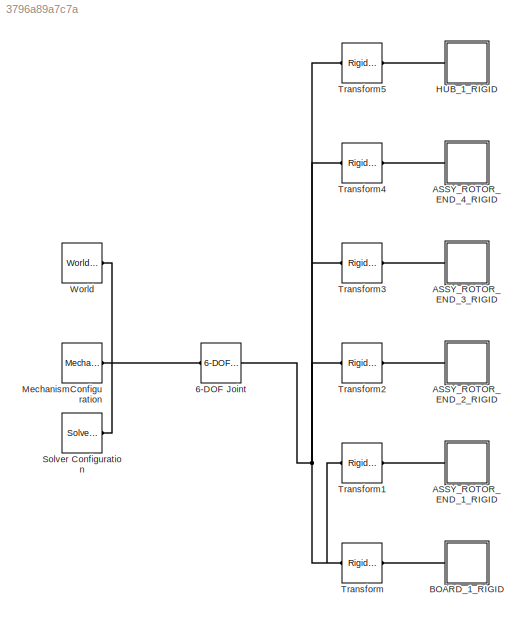
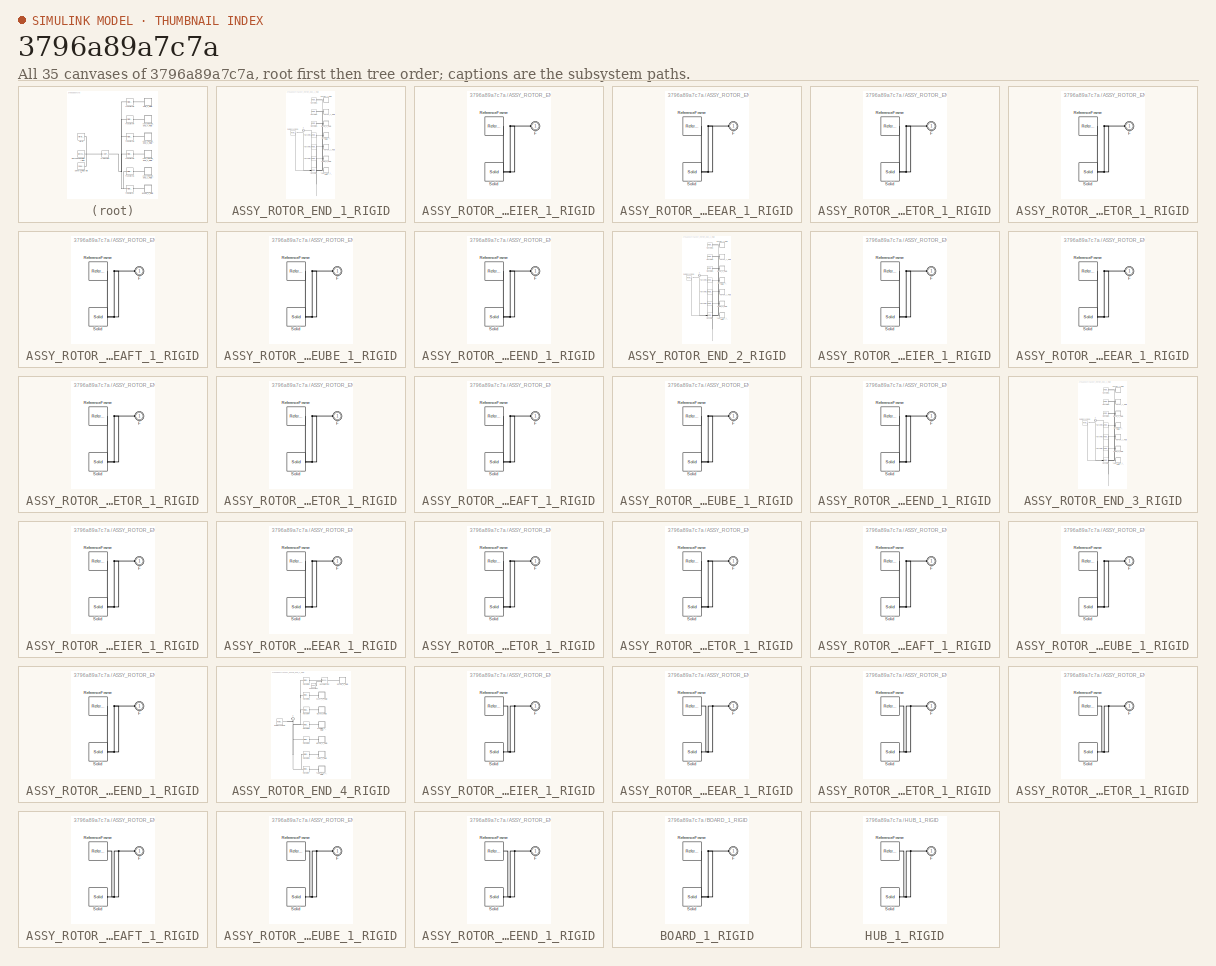
[diagram: thumbnail index - all 35 canvases of the model, root first then tree order]
MODEL slx_3796a89a7c7a
KIND model
CONFIG AbsTol = auto
CONFIG EnableMultiTasking = on
CONFIG FixedStep = auto
CONFIG MaxStep = auto
CONFIG MinStep = auto
CONFIG RelTol = 1e-3
CONFIG SampleTimeConstraint = Unconstrained
CONFIG Solver = ode15s
CONFIG SolverName = ode15s
CONFIG StartTime = 0.0
CONFIG StopTime = 10.0
BLOCK [Reference] 6-DOF Joint  REF=sm_lib/Joints/6-DOF Joint
  Ports = [0, 0, 0, 0, 0, 1, 1]
  SourceBlock = sm_lib/Joints/6-DOF Joint
  SourceProductBaseCode = MS
  SourceProductName = Simscape Multibody
  SourceType = 6-DOF Joint
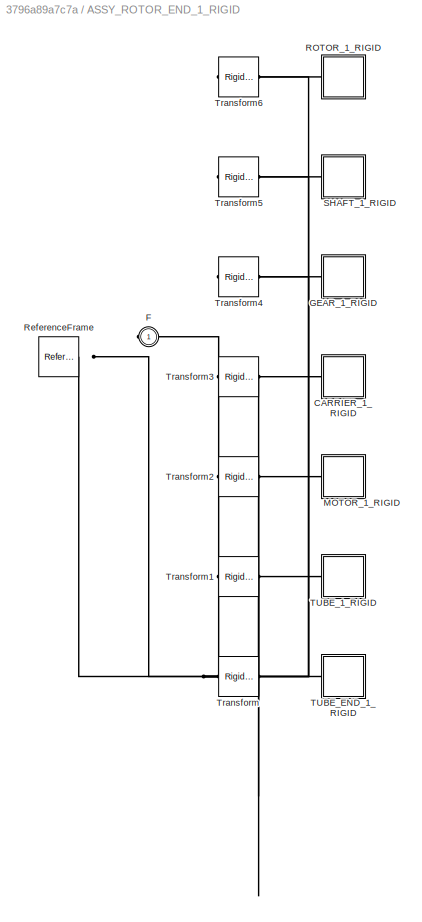
BLOCK [SubSystem] ASSY_ROTOR_END_1_RIGID
  Ports = [0, 0, 0, 0, 0, 1]
  RequestExecContextInheritance = off
BLOCK [SubSystem] ASSY_ROTOR_END_1_RIGID/CARRIER_1_RIGID
  Ports = [0, 0, 0, 0, 0, 1]
  RequestExecContextInheritance = off
BLOCK [PMIOPort] ASSY_ROTOR_END_1_RIGID/CARRIER_1_RIGID/F
  Side = Left
BLOCK [Reference] ASSY_ROTOR_END_1_RIGID/CARRIER_1_RIGID/ReferenceFrame  REF=sm_lib/Frames and
Transforms/Reference
Frame
  Ports = [0, 0, 0, 0, 0, 0, 1]
  SourceBlock = sm_lib/Frames and\nTransforms/Reference\nFrame
  SourceProductBaseCode = MS
  SourceProductName = Simscape Multibody
  SourceType = Reference\nFrame
BLOCK [Reference] ASSY_ROTOR_END_1_RIGID/CARRIER_1_RIGID/Solid  REF=sm_lib/Body Elements/Solid
  Ports = [0, 0, 0, 0, 0, 0, 1]
  SourceBlock = sm_lib/Body Elements/Solid
  SourceProductBaseCode = MS
  SourceProductName = Simscape Multibody
  SourceType = Solid
BLOCK [PMIOPort] ASSY_ROTOR_END_1_RIGID/F
  Side = Left
BLOCK [SubSystem] ASSY_ROTOR_END_1_RIGID/GEAR_1_RIGID
  Ports = [0, 0, 0, 0, 0, 1]
  RequestExecContextInheritance = off
BLOCK [PMIOPort] ASSY_ROTOR_END_1_RIGID/GEAR_1_RIGID/F
  Side = Left
BLOCK [Reference] ASSY_ROTOR_END_1_RIGID/GEAR_1_RIGID/ReferenceFrame  REF=sm_lib/Frames and
Transforms/Reference
Frame
  Ports = [0, 0, 0, 0, 0, 0, 1]
  SourceBlock = sm_lib/Frames and\nTransforms/Reference\nFrame
  SourceProductBaseCode = MS
  SourceProductName = Simscape Multibody
  SourceType = Reference\nFrame
BLOCK [Reference] ASSY_ROTOR_END_1_RIGID/GEAR_1_RIGID/Solid  REF=sm_lib/Body Elements/Solid
  Ports = [0, 0, 0, 0, 0, 0, 1]
  SourceBlock = sm_lib/Body Elements/Solid
  SourceProductBaseCode = MS
  SourceProductName = Simscape Multibody
  SourceType = Solid
BLOCK [SubSystem] ASSY_ROTOR_END_1_RIGID/MOTOR_1_RIGID
  Ports = [0, 0, 0, 0, 0, 1]
  RequestExecContextInheritance = off
BLOCK [PMIOPort] ASSY_ROTOR_END_1_RIGID/MOTOR_1_RIGID/F
  Side = Left
BLOCK [Reference] ASSY_ROTOR_END_1_RIGID/MOTOR_1_RIGID/ReferenceFrame  REF=sm_lib/Frames and
Transforms/Reference
Frame
  Ports = [0, 0, 0, 0, 0, 0, 1]
  SourceBlock = sm_lib/Frames and\nTransforms/Reference\nFrame
  SourceProductBaseCode = MS
  SourceProductName = Simscape Multibody
  SourceType = Reference\nFrame
BLOCK [Reference] ASSY_ROTOR_END_1_RIGID/MOTOR_1_RIGID/Solid  REF=sm_lib/Body Elements/Solid
  Ports = [0, 0, 0, 0, 0, 0, 1]
  SourceBlock = sm_lib/Body Elements/Solid
  SourceProductBaseCode = MS
  SourceProductName = Simscape Multibody
  SourceType = Solid
BLOCK [SubSystem] ASSY_ROTOR_END_1_RIGID/ROTOR_1_RIGID
  Ports = [0, 0, 0, 0, 0, 1]
  RequestExecContextInheritance = off
BLOCK [PMIOPort] ASSY_ROTOR_END_1_RIGID/ROTOR_1_RIGID/F
  Side = Left
BLOCK [Reference] ASSY_ROTOR_END_1_RIGID/ROTOR_1_RIGID/ReferenceFrame  REF=sm_lib/Frames and
Transforms/Reference
Frame
  Ports = [0, 0, 0, 0, 0, 0, 1]
  SourceBlock = sm_lib/Frames and\nTransforms/Reference\nFrame
  SourceProductBaseCode = MS
  SourceProductName = Simscape Multibody
  SourceType = Reference\nFrame
BLOCK [Reference] ASSY_ROTOR_END_1_RIGID/ROTOR_1_RIGID/Solid  REF=sm_lib/Body Elements/Solid
  Ports = [0, 0, 0, 0, 0, 0, 1]
  SourceBlock = sm_lib/Body Elements/Solid
  SourceProductBaseCode = MS
  SourceProductName = Simscape Multibody
  SourceType = Solid
BLOCK [Reference] ASSY_ROTOR_END_1_RIGID/ReferenceFrame  REF=sm_lib/Frames and
Transforms/Reference
Frame
  Ports = [0, 0, 0, 0, 0, 0, 1]
  SourceBlock = sm_lib/Frames and\nTransforms/Reference\nFrame
  SourceProductBaseCode = MS
  SourceProductName = Simscape Multibody
  SourceType = Reference\nFrame
BLOCK [SubSystem] ASSY_ROTOR_END_1_RIGID/SHAFT_1_RIGID
  Ports = [0, 0, 0, 0, 0, 1]
  RequestExecContextInheritance = off
BLOCK [PMIOPort] ASSY_ROTOR_END_1_RIGID/SHAFT_1_RIGID/F
  Side = Left
BLOCK [Reference] ASSY_ROTOR_END_1_RIGID/SHAFT_1_RIGID/ReferenceFrame  REF=sm_lib/Frames and
Transforms/Reference
Frame
  Ports = [0, 0, 0, 0, 0, 0, 1]
  SourceBlock = sm_lib/Frames and\nTransforms/Reference\nFrame
  SourceProductBaseCode = MS
  SourceProductName = Simscape Multibody
  SourceType = Reference\nFrame
BLOCK [Reference] ASSY_ROTOR_END_1_RIGID/SHAFT_1_RIGID/Solid  REF=sm_lib/Body Elements/Solid
  Ports = [0, 0, 0, 0, 0, 0, 1]
  SourceBlock = sm_lib/Body Elements/Solid
  SourceProductBaseCode = MS
  SourceProductName = Simscape Multibody
  SourceType = Solid
BLOCK [SubSystem] ASSY_ROTOR_END_1_RIGID/TUBE_1_RIGID
  Ports = [0, 0, 0, 0, 0, 1]
  RequestExecContextInheritance = off
BLOCK [PMIOPort] ASSY_ROTOR_END_1_RIGID/TUBE_1_RIGID/F
  Side = Left
BLOCK [Reference] ASSY_ROTOR_END_1_RIGID/TUBE_1_RIGID/ReferenceFrame  REF=sm_lib/Frames and
Transforms/Reference
Frame
  Ports = [0, 0, 0, 0, 0, 0, 1]
  SourceBlock = sm_lib/Frames and\nTransforms/Reference\nFrame
  SourceProductBaseCode = MS
  SourceProductName = Simscape Multibody
  SourceType = Reference\nFrame
BLOCK [Reference] ASSY_ROTOR_END_1_RIGID/TUBE_1_RIGID/Solid  REF=sm_lib/Body Elements/Solid
  Ports = [0, 0, 0, 0, 0, 0, 1]
  SourceBlock = sm_lib/Body Elements/Solid
  SourceProductBaseCode = MS
  SourceProductName = Simscape Multibody
  SourceType = Solid
BLOCK [SubSystem] ASSY_ROTOR_END_1_RIGID/TUBE_END_1_RIGID
  Ports = [0, 0, 0, 0, 0, 1]
  RequestExecContextInheritance = off
BLOCK [PMIOPort] ASSY_ROTOR_END_1_RIGID/TUBE_END_1_RIGID/F
  Side = Left
BLOCK [Reference] ASSY_ROTOR_END_1_RIGID/TUBE_END_1_RIGID/ReferenceFrame  REF=sm_lib/Frames and
Transforms/Reference
Frame
  Ports = [0, 0, 0, 0, 0, 0, 1]
  SourceBlock = sm_lib/Frames and\nTransforms/Reference\nFrame
  SourceProductBaseCode = MS
  SourceProductName = Simscape Multibody
  SourceType = Reference\nFrame
BLOCK [Reference] ASSY_ROTOR_END_1_RIGID/TUBE_END_1_RIGID/Solid  REF=sm_lib/Body Elements/Solid
  Ports = [0, 0, 0, 0, 0, 0, 1]
  SourceBlock = sm_lib/Body Elements/Solid
  SourceProductBaseCode = MS
  SourceProductName = Simscape Multibody
  SourceType = Solid
BLOCK [Reference] ASSY_ROTOR_END_1_RIGID/Transform  REF=sm_lib/Frames and
Transforms/Rigid
Transform
  Ports = [0, 0, 0, 0, 0, 1, 1]
  SourceBlock = sm_lib/Frames and\nTransforms/Rigid\nTransform
  SourceProductBaseCode = MS
  SourceProductName = Simscape Multibody
  SourceType = Rigid\nTransform
BLOCK [Reference] ASSY_ROTOR_END_1_RIGID/Transform1  REF=sm_lib/Frames and
Transforms/Rigid
Transform
  Ports = [0, 0, 0, 0, 0, 1, 1]
  SourceBlock = sm_lib/Frames and\nTransforms/Rigid\nTransform
  SourceProductBaseCode = MS
  SourceProductName = Simscape Multibody
  SourceType = Rigid\nTransform
BLOCK [Reference] ASSY_ROTOR_END_1_RIGID/Transform2  REF=sm_lib/Frames and
Transforms/Rigid
Transform
  Ports = [0, 0, 0, 0, 0, 1, 1]
  SourceBlock = sm_lib/Frames and\nTransforms/Rigid\nTransform
  SourceProductBaseCode = MS
  SourceProductName = Simscape Multibody
  SourceType = Rigid\nTransform
BLOCK [Reference] ASSY_ROTOR_END_1_RIGID/Transform3  REF=sm_lib/Frames and
Transforms/Rigid
Transform
  Ports = [0, 0, 0, 0, 0, 1, 1]
  SourceBlock = sm_lib/Frames and\nTransforms/Rigid\nTransform
  SourceProductBaseCode = MS
  SourceProductName = Simscape Multibody
  SourceType = Rigid\nTransform
BLOCK [Reference] ASSY_ROTOR_END_1_RIGID/Transform4  REF=sm_lib/Frames and
Transforms/Rigid
Transform
  Ports = [0, 0, 0, 0, 0, 1, 1]
  SourceBlock = sm_lib/Frames and\nTransforms/Rigid\nTransform
  SourceProductBaseCode = MS
  SourceProductName = Simscape Multibody
  SourceType = Rigid\nTransform
BLOCK [Reference] ASSY_ROTOR_END_1_RIGID/Transform5  REF=sm_lib/Frames and
Transforms/Rigid
Transform
  Ports = [0, 0, 0, 0, 0, 1, 1]
  SourceBlock = sm_lib/Frames and\nTransforms/Rigid\nTransform
  SourceProductBaseCode = MS
  SourceProductName = Simscape Multibody
  SourceType = Rigid\nTransform
BLOCK [Reference] ASSY_ROTOR_END_1_RIGID/Transform6  REF=sm_lib/Frames and
Transforms/Rigid
Transform
  Ports = [0, 0, 0, 0, 0, 1, 1]
  SourceBlock = sm_lib/Frames and\nTransforms/Rigid\nTransform
  SourceProductBaseCode = MS
  SourceProductName = Simscape Multibody
  SourceType = Rigid\nTransform
BLOCK [SubSystem] ASSY_ROTOR_END_2_RIGID
  Ports = [0, 0, 0, 0, 0, 1]
  RequestExecContextInheritance = off
BLOCK [SubSystem] ASSY_ROTOR_END_2_RIGID/CARRIER_1_RIGID
  Ports = [0, 0, 0, 0, 0, 1]
  RequestExecContextInheritance = off
BLOCK [PMIOPort] ASSY_ROTOR_END_2_RIGID/CARRIER_1_RIGID/F
  Side = Left
BLOCK [Reference] ASSY_ROTOR_END_2_RIGID/CARRIER_1_RIGID/ReferenceFrame  REF=sm_lib/Frames and
Transforms/Reference
Frame
  Ports = [0, 0, 0, 0, 0, 0, 1]
  SourceBlock = sm_lib/Frames and\nTransforms/Reference\nFrame
  SourceProductBaseCode = MS
  SourceProductName = Simscape Multibody
  SourceType = Reference\nFrame
BLOCK [Reference] ASSY_ROTOR_END_2_RIGID/CARRIER_1_RIGID/Solid  REF=sm_lib/Body Elements/Solid
  Ports = [0, 0, 0, 0, 0, 0, 1]
  SourceBlock = sm_lib/Body Elements/Solid
  SourceProductBaseCode = MS
  SourceProductName = Simscape Multibody
  SourceType = Solid
BLOCK [PMIOPort] ASSY_ROTOR_END_2_RIGID/F
  Side = Left
BLOCK [SubSystem] ASSY_ROTOR_END_2_RIGID/GEAR_1_RIGID
  Ports = [0, 0, 0, 0, 0, 1]
  RequestExecContextInheritance = off
BLOCK [PMIOPort] ASSY_ROTOR_END_2_RIGID/GEAR_1_RIGID/F
  Side = Left
BLOCK [Reference] ASSY_ROTOR_END_2_RIGID/GEAR_1_RIGID/ReferenceFrame  REF=sm_lib/Frames and
Transforms/Reference
Frame
  Ports = [0, 0, 0, 0, 0, 0, 1]
  SourceBlock = sm_lib/Frames and\nTransforms/Reference\nFrame
  SourceProductBaseCode = MS
  SourceProductName = Simscape Multibody
  SourceType = Reference\nFrame
BLOCK [Reference] ASSY_ROTOR_END_2_RIGID/GEAR_1_RIGID/Solid  REF=sm_lib/Body Elements/Solid
  Ports = [0, 0, 0, 0, 0, 0, 1]
  SourceBlock = sm_lib/Body Elements/Solid
  SourceProductBaseCode = MS
  SourceProductName = Simscape Multibody
  SourceType = Solid
BLOCK [SubSystem] ASSY_ROTOR_END_2_RIGID/MOTOR_1_RIGID
  Ports = [0, 0, 0, 0, 0, 1]
  RequestExecContextInheritance = off
BLOCK [PMIOPort] ASSY_ROTOR_END_2_RIGID/MOTOR_1_RIGID/F
  Side = Left
BLOCK [Reference] ASSY_ROTOR_END_2_RIGID/MOTOR_1_RIGID/ReferenceFrame  REF=sm_lib/Frames and
Transforms/Reference
Frame
  Ports = [0, 0, 0, 0, 0, 0, 1]
  SourceBlock = sm_lib/Frames and\nTransforms/Reference\nFrame
  SourceProductBaseCode = MS
  SourceProductName = Simscape Multibody
  SourceType = Reference\nFrame
BLOCK [Reference] ASSY_ROTOR_END_2_RIGID/MOTOR_1_RIGID/Solid  REF=sm_lib/Body Elements/Solid
  Ports = [0, 0, 0, 0, 0, 0, 1]
  SourceBlock = sm_lib/Body Elements/Solid
  SourceProductBaseCode = MS
  SourceProductName = Simscape Multibody
  SourceType = Solid
BLOCK [SubSystem] ASSY_ROTOR_END_2_RIGID/ROTOR_1_RIGID
  Ports = [0, 0, 0, 0, 0, 1]
  RequestExecContextInheritance = off
BLOCK [PMIOPort] ASSY_ROTOR_END_2_RIGID/ROTOR_1_RIGID/F
  Side = Left
BLOCK [Reference] ASSY_ROTOR_END_2_RIGID/ROTOR_1_RIGID/ReferenceFrame  REF=sm_lib/Frames and
Transforms/Reference
Frame
  Ports = [0, 0, 0, 0, 0, 0, 1]
  SourceBlock = sm_lib/Frames and\nTransforms/Reference\nFrame
  SourceProductBaseCode = MS
  SourceProductName = Simscape Multibody
  SourceType = Reference\nFrame
BLOCK [Reference] ASSY_ROTOR_END_2_RIGID/ROTOR_1_RIGID/Solid  REF=sm_lib/Body Elements/Solid
  Ports = [0, 0, 0, 0, 0, 0, 1]
  SourceBlock = sm_lib/Body Elements/Solid
  SourceProductBaseCode = MS
  SourceProductName = Simscape Multibody
  SourceType = Solid
BLOCK [Reference] ASSY_ROTOR_END_2_RIGID/ReferenceFrame  REF=sm_lib/Frames and
Transforms/Reference
Frame
  Ports = [0, 0, 0, 0, 0, 0, 1]
  SourceBlock = sm_lib/Frames and\nTransforms/Reference\nFrame
  SourceProductBaseCode = MS
  SourceProductName = Simscape Multibody
  SourceType = Reference\nFrame
BLOCK [SubSystem] ASSY_ROTOR_END_2_RIGID/SHAFT_1_RIGID
  Ports = [0, 0, 0, 0, 0, 1]
  RequestExecContextInheritance = off
BLOCK [PMIOPort] ASSY_ROTOR_END_2_RIGID/SHAFT_1_RIGID/F
  Side = Left
BLOCK [Reference] ASSY_ROTOR_END_2_RIGID/SHAFT_1_RIGID/ReferenceFrame  REF=sm_lib/Frames and
Transforms/Reference
Frame
  Ports = [0, 0, 0, 0, 0, 0, 1]
  SourceBlock = sm_lib/Frames and\nTransforms/Reference\nFrame
  SourceProductBaseCode = MS
  SourceProductName = Simscape Multibody
  SourceType = Reference\nFrame
BLOCK [Reference] ASSY_ROTOR_END_2_RIGID/SHAFT_1_RIGID/Solid  REF=sm_lib/Body Elements/Solid
  Ports = [0, 0, 0, 0, 0, 0, 1]
  SourceBlock = sm_lib/Body Elements/Solid
  SourceProductBaseCode = MS
  SourceProductName = Simscape Multibody
  SourceType = Solid
BLOCK [SubSystem] ASSY_ROTOR_END_2_RIGID/TUBE_1_RIGID
  Ports = [0, 0, 0, 0, 0, 1]
  RequestExecContextInheritance = off
BLOCK [PMIOPort] ASSY_ROTOR_END_2_RIGID/TUBE_1_RIGID/F
  Side = Left
BLOCK [Reference] ASSY_ROTOR_END_2_RIGID/TUBE_1_RIGID/ReferenceFrame  REF=sm_lib/Frames and
Transforms/Reference
Frame
  Ports = [0, 0, 0, 0, 0, 0, 1]
  SourceBlock = sm_lib/Frames and\nTransforms/Reference\nFrame
  SourceProductBaseCode = MS
  SourceProductName = Simscape Multibody
  SourceType = Reference\nFrame
BLOCK [Reference] ASSY_ROTOR_END_2_RIGID/TUBE_1_RIGID/Solid  REF=sm_lib/Body Elements/Solid
  Ports = [0, 0, 0, 0, 0, 0, 1]
  SourceBlock = sm_lib/Body Elements/Solid
  SourceProductBaseCode = MS
  SourceProductName = Simscape Multibody
  SourceType = Solid
BLOCK [SubSystem] ASSY_ROTOR_END_2_RIGID/TUBE_END_1_RIGID
  Ports = [0, 0, 0, 0, 0, 1]
  RequestExecContextInheritance = off
BLOCK [PMIOPort] ASSY_ROTOR_END_2_RIGID/TUBE_END_1_RIGID/F
  Side = Left
BLOCK [Reference] ASSY_ROTOR_END_2_RIGID/TUBE_END_1_RIGID/ReferenceFrame  REF=sm_lib/Frames and
Transforms/Reference
Frame
  Ports = [0, 0, 0, 0, 0, 0, 1]
  SourceBlock = sm_lib/Frames and\nTransforms/Reference\nFrame
  SourceProductBaseCode = MS
  SourceProductName = Simscape Multibody
  SourceType = Reference\nFrame
BLOCK [Reference] ASSY_ROTOR_END_2_RIGID/TUBE_END_1_RIGID/Solid  REF=sm_lib/Body Elements/Solid
  Ports = [0, 0, 0, 0, 0, 0, 1]
  SourceBlock = sm_lib/Body Elements/Solid
  SourceProductBaseCode = MS
  SourceProductName = Simscape Multibody
  SourceType = Solid
BLOCK [Reference] ASSY_ROTOR_END_2_RIGID/Transform  REF=sm_lib/Frames and
Transforms/Rigid
Transform
  Ports = [0, 0, 0, 0, 0, 1, 1]
  SourceBlock = sm_lib/Frames and\nTransforms/Rigid\nTransform
  SourceProductBaseCode = MS
  SourceProductName = Simscape Multibody
  SourceType = Rigid\nTransform
BLOCK [Reference] ASSY_ROTOR_END_2_RIGID/Transform1  REF=sm_lib/Frames and
Transforms/Rigid
Transform
  Ports = [0, 0, 0, 0, 0, 1, 1]
  SourceBlock = sm_lib/Frames and\nTransforms/Rigid\nTransform
  SourceProductBaseCode = MS
  SourceProductName = Simscape Multibody
  SourceType = Rigid\nTransform
BLOCK [Reference] ASSY_ROTOR_END_2_RIGID/Transform2  REF=sm_lib/Frames and
Transforms/Rigid
Transform
  Ports = [0, 0, 0, 0, 0, 1, 1]
  SourceBlock = sm_lib/Frames and\nTransforms/Rigid\nTransform
  SourceProductBaseCode = MS
  SourceProductName = Simscape Multibody
  SourceType = Rigid\nTransform
BLOCK [Reference] ASSY_ROTOR_END_2_RIGID/Transform3  REF=sm_lib/Frames and
Transforms/Rigid
Transform
  Ports = [0, 0, 0, 0, 0, 1, 1]
  SourceBlock = sm_lib/Frames and\nTransforms/Rigid\nTransform
  SourceProductBaseCode = MS
  SourceProductName = Simscape Multibody
  SourceType = Rigid\nTransform
BLOCK [Reference] ASSY_ROTOR_END_2_RIGID/Transform4  REF=sm_lib/Frames and
Transforms/Rigid
Transform
  Ports = [0, 0, 0, 0, 0, 1, 1]
  SourceBlock = sm_lib/Frames and\nTransforms/Rigid\nTransform
  SourceProductBaseCode = MS
  SourceProductName = Simscape Multibody
  SourceType = Rigid\nTransform
BLOCK [Reference] ASSY_ROTOR_END_2_RIGID/Transform5  REF=sm_lib/Frames and
Transforms/Rigid
Transform
  Ports = [0, 0, 0, 0, 0, 1, 1]
  SourceBlock = sm_lib/Frames and\nTransforms/Rigid\nTransform
  SourceProductBaseCode = MS
  SourceProductName = Simscape Multibody
  SourceType = Rigid\nTransform
BLOCK [Reference] ASSY_ROTOR_END_2_RIGID/Transform6  REF=sm_lib/Frames and
Transforms/Rigid
Transform
  Ports = [0, 0, 0, 0, 0, 1, 1]
  SourceBlock = sm_lib/Frames and\nTransforms/Rigid\nTransform
  SourceProductBaseCode = MS
  SourceProductName = Simscape Multibody
  SourceType = Rigid\nTransform
BLOCK [SubSystem] ASSY_ROTOR_END_3_RIGID
  Ports = [0, 0, 0, 0, 0, 1]
  RequestExecContextInheritance = off
BLOCK [SubSystem] ASSY_ROTOR_END_3_RIGID/CARRIER_1_RIGID
  Ports = [0, 0, 0, 0, 0, 1]
  RequestExecContextInheritance = off
BLOCK [PMIOPort] ASSY_ROTOR_END_3_RIGID/CARRIER_1_RIGID/F
  Side = Left
BLOCK [Reference] ASSY_ROTOR_END_3_RIGID/CARRIER_1_RIGID/ReferenceFrame  REF=sm_lib/Frames and
Transforms/Reference
Frame
  Ports = [0, 0, 0, 0, 0, 0, 1]
  SourceBlock = sm_lib/Frames and\nTransforms/Reference\nFrame
  SourceProductBaseCode = MS
  SourceProductName = Simscape Multibody
  SourceType = Reference\nFrame
BLOCK [Reference] ASSY_ROTOR_END_3_RIGID/CARRIER_1_RIGID/Solid  REF=sm_lib/Body Elements/Solid
  Ports = [0, 0, 0, 0, 0, 0, 1]
  SourceBlock = sm_lib/Body Elements/Solid
  SourceProductBaseCode = MS
  SourceProductName = Simscape Multibody
  SourceType = Solid
BLOCK [PMIOPort] ASSY_ROTOR_END_3_RIGID/F
  Side = Left
BLOCK [SubSystem] ASSY_ROTOR_END_3_RIGID/GEAR_1_RIGID
  Ports = [0, 0, 0, 0, 0, 1]
  RequestExecContextInheritance = off
BLOCK [PMIOPort] ASSY_ROTOR_END_3_RIGID/GEAR_1_RIGID/F
  Side = Left
BLOCK [Reference] ASSY_ROTOR_END_3_RIGID/GEAR_1_RIGID/ReferenceFrame  REF=sm_lib/Frames and
Transforms/Reference
Frame
  Ports = [0, 0, 0, 0, 0, 0, 1]
  SourceBlock = sm_lib/Frames and\nTransforms/Reference\nFrame
  SourceProductBaseCode = MS
  SourceProductName = Simscape Multibody
  SourceType = Reference\nFrame
BLOCK [Reference] ASSY_ROTOR_END_3_RIGID/GEAR_1_RIGID/Solid  REF=sm_lib/Body Elements/Solid
  Ports = [0, 0, 0, 0, 0, 0, 1]
  SourceBlock = sm_lib/Body Elements/Solid
  SourceProductBaseCode = MS
  SourceProductName = Simscape Multibody
  SourceType = Solid
BLOCK [SubSystem] ASSY_ROTOR_END_3_RIGID/MOTOR_1_RIGID
  Ports = [0, 0, 0, 0, 0, 1]
  RequestExecContextInheritance = off
BLOCK [PMIOPort] ASSY_ROTOR_END_3_RIGID/MOTOR_1_RIGID/F
  Side = Left
BLOCK [Reference] ASSY_ROTOR_END_3_RIGID/MOTOR_1_RIGID/ReferenceFrame  REF=sm_lib/Frames and
Transforms/Reference
Frame
  Ports = [0, 0, 0, 0, 0, 0, 1]
  SourceBlock = sm_lib/Frames and\nTransforms/Reference\nFrame
  SourceProductBaseCode = MS
  SourceProductName = Simscape Multibody
  SourceType = Reference\nFrame
BLOCK [Reference] ASSY_ROTOR_END_3_RIGID/MOTOR_1_RIGID/Solid  REF=sm_lib/Body Elements/Solid
  Ports = [0, 0, 0, 0, 0, 0, 1]
  SourceBlock = sm_lib/Body Elements/Solid
  SourceProductBaseCode = MS
  SourceProductName = Simscape Multibody
  SourceType = Solid
BLOCK [SubSystem] ASSY_ROTOR_END_3_RIGID/ROTOR_1_RIGID
  Ports = [0, 0, 0, 0, 0, 1]
  RequestExecContextInheritance = off
BLOCK [PMIOPort] ASSY_ROTOR_END_3_RIGID/ROTOR_1_RIGID/F
  Side = Left
BLOCK [Reference] ASSY_ROTOR_END_3_RIGID/ROTOR_1_RIGID/ReferenceFrame  REF=sm_lib/Frames and
Transforms/Reference
Frame
  Ports = [0, 0, 0, 0, 0, 0, 1]
  SourceBlock = sm_lib/Frames and\nTransforms/Reference\nFrame
  SourceProductBaseCode = MS
  SourceProductName = Simscape Multibody
  SourceType = Reference\nFrame
BLOCK [Reference] ASSY_ROTOR_END_3_RIGID/ROTOR_1_RIGID/Solid  REF=sm_lib/Body Elements/Solid
  Ports = [0, 0, 0, 0, 0, 0, 1]
  SourceBlock = sm_lib/Body Elements/Solid
  SourceProductBaseCode = MS
  SourceProductName = Simscape Multibody
  SourceType = Solid
BLOCK [Reference] ASSY_ROTOR_END_3_RIGID/ReferenceFrame  REF=sm_lib/Frames and
Transforms/Reference
Frame
  Ports = [0, 0, 0, 0, 0, 0, 1]
  SourceBlock = sm_lib/Frames and\nTransforms/Reference\nFrame
  SourceProductBaseCode = MS
  SourceProductName = Simscape Multibody
  SourceType = Reference\nFrame
BLOCK [SubSystem] ASSY_ROTOR_END_3_RIGID/SHAFT_1_RIGID
  Ports = [0, 0, 0, 0, 0, 1]
  RequestExecContextInheritance = off
BLOCK [PMIOPort] ASSY_ROTOR_END_3_RIGID/SHAFT_1_RIGID/F
  Side = Left
BLOCK [Reference] ASSY_ROTOR_END_3_RIGID/SHAFT_1_RIGID/ReferenceFrame  REF=sm_lib/Frames and
Transforms/Reference
Frame
  Ports = [0, 0, 0, 0, 0, 0, 1]
  SourceBlock = sm_lib/Frames and\nTransforms/Reference\nFrame
  SourceProductBaseCode = MS
  SourceProductName = Simscape Multibody
  SourceType = Reference\nFrame
BLOCK [Reference] ASSY_ROTOR_END_3_RIGID/SHAFT_1_RIGID/Solid  REF=sm_lib/Body Elements/Solid
  Ports = [0, 0, 0, 0, 0, 0, 1]
  SourceBlock = sm_lib/Body Elements/Solid
  SourceProductBaseCode = MS
  SourceProductName = Simscape Multibody
  SourceType = Solid
BLOCK [SubSystem] ASSY_ROTOR_END_3_RIGID/TUBE_1_RIGID
  Ports = [0, 0, 0, 0, 0, 1]
  RequestExecContextInheritance = off
BLOCK [PMIOPort] ASSY_ROTOR_END_3_RIGID/TUBE_1_RIGID/F
  Side = Left
BLOCK [Reference] ASSY_ROTOR_END_3_RIGID/TUBE_1_RIGID/ReferenceFrame  REF=sm_lib/Frames and
Transforms/Reference
Frame
  Ports = [0, 0, 0, 0, 0, 0, 1]
  SourceBlock = sm_lib/Frames and\nTransforms/Reference\nFrame
  SourceProductBaseCode = MS
  SourceProductName = Simscape Multibody
  SourceType = Reference\nFrame
BLOCK [Reference] ASSY_ROTOR_END_3_RIGID/TUBE_1_RIGID/Solid  REF=sm_lib/Body Elements/Solid
  Ports = [0, 0, 0, 0, 0, 0, 1]
  SourceBlock = sm_lib/Body Elements/Solid
  SourceProductBaseCode = MS
  SourceProductName = Simscape Multibody
  SourceType = Solid
BLOCK [SubSystem] ASSY_ROTOR_END_3_RIGID/TUBE_END_1_RIGID
  Ports = [0, 0, 0, 0, 0, 1]
  RequestExecContextInheritance = off
BLOCK [PMIOPort] ASSY_ROTOR_END_3_RIGID/TUBE_END_1_RIGID/F
  Side = Left
BLOCK [Reference] ASSY_ROTOR_END_3_RIGID/TUBE_END_1_RIGID/ReferenceFrame  REF=sm_lib/Frames and
Transforms/Reference
Frame
  Ports = [0, 0, 0, 0, 0, 0, 1]
  SourceBlock = sm_lib/Frames and\nTransforms/Reference\nFrame
  SourceProductBaseCode = MS
  SourceProductName = Simscape Multibody
  SourceType = Reference\nFrame
BLOCK [Reference] ASSY_ROTOR_END_3_RIGID/TUBE_END_1_RIGID/Solid  REF=sm_lib/Body Elements/Solid
  Ports = [0, 0, 0, 0, 0, 0, 1]
  SourceBlock = sm_lib/Body Elements/Solid
  SourceProductBaseCode = MS
  SourceProductName = Simscape Multibody
  SourceType = Solid
BLOCK [Reference] ASSY_ROTOR_END_3_RIGID/Transform  REF=sm_lib/Frames and
Transforms/Rigid
Transform
  Ports = [0, 0, 0, 0, 0, 1, 1]
  SourceBlock = sm_lib/Frames and\nTransforms/Rigid\nTransform
  SourceProductBaseCode = MS
  SourceProductName = Simscape Multibody
  SourceType = Rigid\nTransform
BLOCK [Reference] ASSY_ROTOR_END_3_RIGID/Transform1  REF=sm_lib/Frames and
Transforms/Rigid
Transform
  Ports = [0, 0, 0, 0, 0, 1, 1]
  SourceBlock = sm_lib/Frames and\nTransforms/Rigid\nTransform
  SourceProductBaseCode = MS
  SourceProductName = Simscape Multibody
  SourceType = Rigid\nTransform
BLOCK [Reference] ASSY_ROTOR_END_3_RIGID/Transform2  REF=sm_lib/Frames and
Transforms/Rigid
Transform
  Ports = [0, 0, 0, 0, 0, 1, 1]
  SourceBlock = sm_lib/Frames and\nTransforms/Rigid\nTransform
  SourceProductBaseCode = MS
  SourceProductName = Simscape Multibody
  SourceType = Rigid\nTransform
BLOCK [Reference] ASSY_ROTOR_END_3_RIGID/Transform3  REF=sm_lib/Frames and
Transforms/Rigid
Transform
  Ports = [0, 0, 0, 0, 0, 1, 1]
  SourceBlock = sm_lib/Frames and\nTransforms/Rigid\nTransform
  SourceProductBaseCode = MS
  SourceProductName = Simscape Multibody
  SourceType = Rigid\nTransform
BLOCK [Reference] ASSY_ROTOR_END_3_RIGID/Transform4  REF=sm_lib/Frames and
Transforms/Rigid
Transform
  Ports = [0, 0, 0, 0, 0, 1, 1]
  SourceBlock = sm_lib/Frames and\nTransforms/Rigid\nTransform
  SourceProductBaseCode = MS
  SourceProductName = Simscape Multibody
  SourceType = Rigid\nTransform
BLOCK [Reference] ASSY_ROTOR_END_3_RIGID/Transform5  REF=sm_lib/Frames and
Transforms/Rigid
Transform
  Ports = [0, 0, 0, 0, 0, 1, 1]
  SourceBlock = sm_lib/Frames and\nTransforms/Rigid\nTransform
  SourceProductBaseCode = MS
  SourceProductName = Simscape Multibody
  SourceType = Rigid\nTransform
BLOCK [Reference] ASSY_ROTOR_END_3_RIGID/Transform6  REF=sm_lib/Frames and
Transforms/Rigid
Transform
  Ports = [0, 0, 0, 0, 0, 1, 1]
  SourceBlock = sm_lib/Frames and\nTransforms/Rigid\nTransform
  SourceProductBaseCode = MS
  SourceProductName = Simscape Multibody
  SourceType = Rigid\nTransform
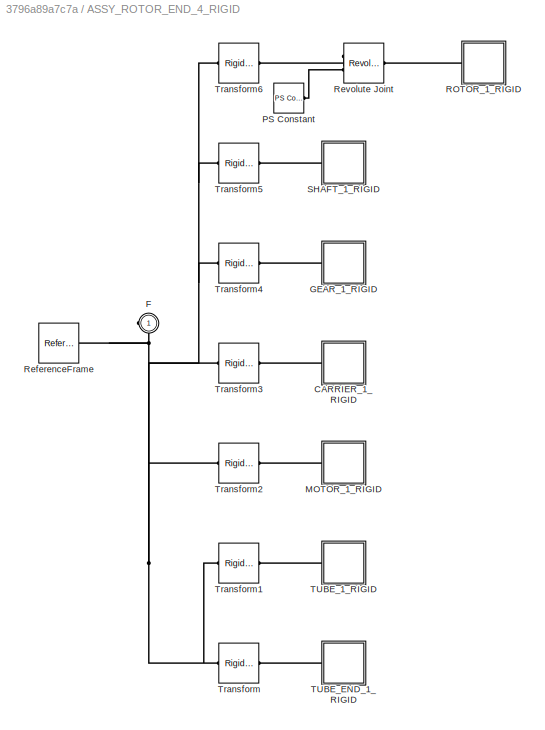
BLOCK [SubSystem] ASSY_ROTOR_END_4_RIGID
  Ports = [0, 0, 0, 0, 0, 1]
  RequestExecContextInheritance = off
BLOCK [SubSystem] ASSY_ROTOR_END_4_RIGID/CARRIER_1_RIGID
  Ports = [0, 0, 0, 0, 0, 1]
  RequestExecContextInheritance = off
BLOCK [PMIOPort] ASSY_ROTOR_END_4_RIGID/CARRIER_1_RIGID/F
  Side = Left
BLOCK [Reference] ASSY_ROTOR_END_4_RIGID/CARRIER_1_RIGID/ReferenceFrame  REF=sm_lib/Frames and
Transforms/Reference
Frame
  Ports = [0, 0, 0, 0, 0, 0, 1]
  SourceBlock = sm_lib/Frames and\nTransforms/Reference\nFrame
  SourceProductBaseCode = MS
  SourceProductName = Simscape Multibody
  SourceType = Reference\nFrame
BLOCK [Reference] ASSY_ROTOR_END_4_RIGID/CARRIER_1_RIGID/Solid  REF=sm_lib/Body Elements/Solid
  Ports = [0, 0, 0, 0, 0, 0, 1]
  SourceBlock = sm_lib/Body Elements/Solid
  SourceProductBaseCode = MS
  SourceProductName = Simscape Multibody
  SourceType = Solid
BLOCK [PMIOPort] ASSY_ROTOR_END_4_RIGID/F
  Side = Left
BLOCK [SubSystem] ASSY_ROTOR_END_4_RIGID/GEAR_1_RIGID
  Ports = [0, 0, 0, 0, 0, 1]
  RequestExecContextInheritance = off
BLOCK [PMIOPort] ASSY_ROTOR_END_4_RIGID/GEAR_1_RIGID/F
  Side = Left
BLOCK [Reference] ASSY_ROTOR_END_4_RIGID/GEAR_1_RIGID/ReferenceFrame  REF=sm_lib/Frames and
Transforms/Reference
Frame
  Ports = [0, 0, 0, 0, 0, 0, 1]
  SourceBlock = sm_lib/Frames and\nTransforms/Reference\nFrame
  SourceProductBaseCode = MS
  SourceProductName = Simscape Multibody
  SourceType = Reference\nFrame
BLOCK [Reference] ASSY_ROTOR_END_4_RIGID/GEAR_1_RIGID/Solid  REF=sm_lib/Body Elements/Solid
  Ports = [0, 0, 0, 0, 0, 0, 1]
  SourceBlock = sm_lib/Body Elements/Solid
  SourceProductBaseCode = MS
  SourceProductName = Simscape Multibody
  SourceType = Solid
BLOCK [SubSystem] ASSY_ROTOR_END_4_RIGID/MOTOR_1_RIGID
  Ports = [0, 0, 0, 0, 0, 1]
  RequestExecContextInheritance = off
BLOCK [PMIOPort] ASSY_ROTOR_END_4_RIGID/MOTOR_1_RIGID/F
  Side = Left
BLOCK [Reference] ASSY_ROTOR_END_4_RIGID/MOTOR_1_RIGID/ReferenceFrame  REF=sm_lib/Frames and
Transforms/Reference
Frame
  Ports = [0, 0, 0, 0, 0, 0, 1]
  SourceBlock = sm_lib/Frames and\nTransforms/Reference\nFrame
  SourceProductBaseCode = MS
  SourceProductName = Simscape Multibody
  SourceType = Reference\nFrame
BLOCK [Reference] ASSY_ROTOR_END_4_RIGID/MOTOR_1_RIGID/Solid  REF=sm_lib/Body Elements/Solid
  Ports = [0, 0, 0, 0, 0, 0, 1]
  SourceBlock = sm_lib/Body Elements/Solid
  SourceProductBaseCode = MS
  SourceProductName = Simscape Multibody
  SourceType = Solid
BLOCK [Reference] ASSY_ROTOR_END_4_RIGID/PS Constant  REF=fl_lib/Physical Signals/Sources/PS Constant
  Ports = [0, 0, 0, 0, 0, 0, 1]
  SourceBlock = fl_lib/Physical Signals/Sources/PS Constant
  SourceProductBaseCode = SS
  SourceProductName = Simscape
  SourceType = PS Constant
BLOCK [SubSystem] ASSY_ROTOR_END_4_RIGID/ROTOR_1_RIGID
  Ports = [0, 0, 0, 0, 0, 1]
  RequestExecContextInheritance = off
BLOCK [PMIOPort] ASSY_ROTOR_END_4_RIGID/ROTOR_1_RIGID/F
  Side = Left
BLOCK [Reference] ASSY_ROTOR_END_4_RIGID/ROTOR_1_RIGID/ReferenceFrame  REF=sm_lib/Frames and
Transforms/Reference
Frame
  Ports = [0, 0, 0, 0, 0, 0, 1]
  SourceBlock = sm_lib/Frames and\nTransforms/Reference\nFrame
  SourceProductBaseCode = MS
  SourceProductName = Simscape Multibody
  SourceType = Reference\nFrame
BLOCK [Reference] ASSY_ROTOR_END_4_RIGID/ROTOR_1_RIGID/Solid  REF=sm_lib/Body Elements/Solid
  Ports = [0, 0, 0, 0, 0, 0, 1]
  SourceBlock = sm_lib/Body Elements/Solid
  SourceProductBaseCode = MS
  SourceProductName = Simscape Multibody
  SourceType = Solid
BLOCK [Reference] ASSY_ROTOR_END_4_RIGID/ReferenceFrame  REF=sm_lib/Frames and
Transforms/Reference
Frame
  Ports = [0, 0, 0, 0, 0, 0, 1]
  SourceBlock = sm_lib/Frames and\nTransforms/Reference\nFrame
  SourceProductBaseCode = MS
  SourceProductName = Simscape Multibody
  SourceType = Reference\nFrame
BLOCK [Reference] ASSY_ROTOR_END_4_RIGID/Revolute Joint  REF=sm_lib/Joints/Revolute Joint
  Ports = [0, 0, 0, 0, 0, 2, 1]
  SourceBlock = sm_lib/Joints/Revolute Joint
  SourceProductBaseCode = MS
  SourceProductName = Simscape Multibody
  SourceType = Revolute Joint
BLOCK [SubSystem] ASSY_ROTOR_END_4_RIGID/SHAFT_1_RIGID
  Ports = [0, 0, 0, 0, 0, 1]
  RequestExecContextInheritance = off
BLOCK [PMIOPort] ASSY_ROTOR_END_4_RIGID/SHAFT_1_RIGID/F
  Side = Left
BLOCK [Reference] ASSY_ROTOR_END_4_RIGID/SHAFT_1_RIGID/ReferenceFrame  REF=sm_lib/Frames and
Transforms/Reference
Frame
  Ports = [0, 0, 0, 0, 0, 0, 1]
  SourceBlock = sm_lib/Frames and\nTransforms/Reference\nFrame
  SourceProductBaseCode = MS
  SourceProductName = Simscape Multibody
  SourceType = Reference\nFrame
BLOCK [Reference] ASSY_ROTOR_END_4_RIGID/SHAFT_1_RIGID/Solid  REF=sm_lib/Body Elements/Solid
  Ports = [0, 0, 0, 0, 0, 0, 1]
  SourceBlock = sm_lib/Body Elements/Solid
  SourceProductBaseCode = MS
  SourceProductName = Simscape Multibody
  SourceType = Solid
BLOCK [SubSystem] ASSY_ROTOR_END_4_RIGID/TUBE_1_RIGID
  Ports = [0, 0, 0, 0, 0, 1]
  RequestExecContextInheritance = off
BLOCK [PMIOPort] ASSY_ROTOR_END_4_RIGID/TUBE_1_RIGID/F
  Side = Left
BLOCK [Reference] ASSY_ROTOR_END_4_RIGID/TUBE_1_RIGID/ReferenceFrame  REF=sm_lib/Frames and
Transforms/Reference
Frame
  Ports = [0, 0, 0, 0, 0, 0, 1]
  SourceBlock = sm_lib/Frames and\nTransforms/Reference\nFrame
  SourceProductBaseCode = MS
  SourceProductName = Simscape Multibody
  SourceType = Reference\nFrame
BLOCK [Reference] ASSY_ROTOR_END_4_RIGID/TUBE_1_RIGID/Solid  REF=sm_lib/Body Elements/Solid
  Ports = [0, 0, 0, 0, 0, 0, 1]
  SourceBlock = sm_lib/Body Elements/Solid
  SourceProductBaseCode = MS
  SourceProductName = Simscape Multibody
  SourceType = Solid
BLOCK [SubSystem] ASSY_ROTOR_END_4_RIGID/TUBE_END_1_RIGID
  Ports = [0, 0, 0, 0, 0, 1]
  RequestExecContextInheritance = off
BLOCK [PMIOPort] ASSY_ROTOR_END_4_RIGID/TUBE_END_1_RIGID/F
  Side = Left
BLOCK [Reference] ASSY_ROTOR_END_4_RIGID/TUBE_END_1_RIGID/ReferenceFrame  REF=sm_lib/Frames and
Transforms/Reference
Frame
  Ports = [0, 0, 0, 0, 0, 0, 1]
  SourceBlock = sm_lib/Frames and\nTransforms/Reference\nFrame
  SourceProductBaseCode = MS
  SourceProductName = Simscape Multibody
  SourceType = Reference\nFrame
BLOCK [Reference] ASSY_ROTOR_END_4_RIGID/TUBE_END_1_RIGID/Solid  REF=sm_lib/Body Elements/Solid
  Ports = [0, 0, 0, 0, 0, 0, 1]
  SourceBlock = sm_lib/Body Elements/Solid
  SourceProductBaseCode = MS
  SourceProductName = Simscape Multibody
  SourceType = Solid
BLOCK [Reference] ASSY_ROTOR_END_4_RIGID/Transform  REF=sm_lib/Frames and
Transforms/Rigid
Transform
  Ports = [0, 0, 0, 0, 0, 1, 1]
  SourceBlock = sm_lib/Frames and\nTransforms/Rigid\nTransform
  SourceProductBaseCode = MS
  SourceProductName = Simscape Multibody
  SourceType = Rigid\nTransform
BLOCK [Reference] ASSY_ROTOR_END_4_RIGID/Transform1  REF=sm_lib/Frames and
Transforms/Rigid
Transform
  Ports = [0, 0, 0, 0, 0, 1, 1]
  SourceBlock = sm_lib/Frames and\nTransforms/Rigid\nTransform
  SourceProductBaseCode = MS
  SourceProductName = Simscape Multibody
  SourceType = Rigid\nTransform
BLOCK [Reference] ASSY_ROTOR_END_4_RIGID/Transform2  REF=sm_lib/Frames and
Transforms/Rigid
Transform
  Ports = [0, 0, 0, 0, 0, 1, 1]
  SourceBlock = sm_lib/Frames and\nTransforms/Rigid\nTransform
  SourceProductBaseCode = MS
  SourceProductName = Simscape Multibody
  SourceType = Rigid\nTransform
BLOCK [Reference] ASSY_ROTOR_END_4_RIGID/Transform3  REF=sm_lib/Frames and
Transforms/Rigid
Transform
  Ports = [0, 0, 0, 0, 0, 1, 1]
  SourceBlock = sm_lib/Frames and\nTransforms/Rigid\nTransform
  SourceProductBaseCode = MS
  SourceProductName = Simscape Multibody
  SourceType = Rigid\nTransform
BLOCK [Reference] ASSY_ROTOR_END_4_RIGID/Transform4  REF=sm_lib/Frames and
Transforms/Rigid
Transform
  Ports = [0, 0, 0, 0, 0, 1, 1]
  SourceBlock = sm_lib/Frames and\nTransforms/Rigid\nTransform
  SourceProductBaseCode = MS
  SourceProductName = Simscape Multibody
  SourceType = Rigid\nTransform
BLOCK [Reference] ASSY_ROTOR_END_4_RIGID/Transform5  REF=sm_lib/Frames and
Transforms/Rigid
Transform
  Ports = [0, 0, 0, 0, 0, 1, 1]
  SourceBlock = sm_lib/Frames and\nTransforms/Rigid\nTransform
  SourceProductBaseCode = MS
  SourceProductName = Simscape Multibody
  SourceType = Rigid\nTransform
BLOCK [Reference] ASSY_ROTOR_END_4_RIGID/Transform6  REF=sm_lib/Frames and
Transforms/Rigid
Transform
  Ports = [0, 0, 0, 0, 0, 1, 1]
  SourceBlock = sm_lib/Frames and\nTransforms/Rigid\nTransform
  SourceProductBaseCode = MS
  SourceProductName = Simscape Multibody
  SourceType = Rigid\nTransform
BLOCK [SubSystem] BOARD_1_RIGID
  Ports = [0, 0, 0, 0, 0, 1]
  RequestExecContextInheritance = off
BLOCK [PMIOPort] BOARD_1_RIGID/F
  Side = Left
BLOCK [Reference] BOARD_1_RIGID/ReferenceFrame  REF=sm_lib/Frames and
Transforms/Reference
Frame
  Ports = [0, 0, 0, 0, 0, 0, 1]
  SourceBlock = sm_lib/Frames and\nTransforms/Reference\nFrame
  SourceProductBaseCode = MS
  SourceProductName = Simscape Multibody
  SourceType = Reference\nFrame
BLOCK [Reference] BOARD_1_RIGID/Solid  REF=sm_lib/Body Elements/Solid
  Ports = [0, 0, 0, 0, 0, 0, 1]
  SourceBlock = sm_lib/Body Elements/Solid
  SourceProductBaseCode = MS
  SourceProductName = Simscape Multibody
  SourceType = Solid
BLOCK [SubSystem] HUB_1_RIGID
  Ports = [0, 0, 0, 0, 0, 1]
  RequestExecContextInheritance = off
BLOCK [PMIOPort] HUB_1_RIGID/F
  Side = Left
BLOCK [Reference] HUB_1_RIGID/ReferenceFrame  REF=sm_lib/Frames and
Transforms/Reference
Frame
  Ports = [0, 0, 0, 0, 0, 0, 1]
  SourceBlock = sm_lib/Frames and\nTransforms/Reference\nFrame
  SourceProductBaseCode = MS
  SourceProductName = Simscape Multibody
  SourceType = Reference\nFrame
BLOCK [Reference] HUB_1_RIGID/Solid  REF=sm_lib/Body Elements/Solid
  Ports = [0, 0, 0, 0, 0, 0, 1]
  SourceBlock = sm_lib/Body Elements/Solid
  SourceProductBaseCode = MS
  SourceProductName = Simscape Multibody
  SourceType = Solid
BLOCK [Reference] MechanismConfiguration  REF=sm_lib/Utilities/Mechanism
Configuration
  Ports = [0, 0, 0, 0, 0, 0, 1]
  SourceBlock = sm_lib/Utilities/Mechanism\nConfiguration
  SourceProductBaseCode = MS
  SourceProductName = Simscape Multibody
  SourceType = Mechanism\nConfiguration
BLOCK [Reference] Solver Configuration  REF=nesl_utility/Solver
Configuration
  Ports = [0, 0, 0, 0, 0, 0, 1]
  SourceBlock = nesl_utility/Solver\nConfiguration
  SourceProductBaseCode = SS
  SourceProductName = Simscape
  SourceType = Solver\nConfiguration
BLOCK [Reference] Transform  REF=sm_lib/Frames and
Transforms/Rigid
Transform
  Ports = [0, 0, 0, 0, 0, 1, 1]
  SourceBlock = sm_lib/Frames and\nTransforms/Rigid\nTransform
  SourceProductBaseCode = MS
  SourceProductName = Simscape Multibody
  SourceType = Rigid\nTransform
BLOCK [Reference] Transform1  REF=sm_lib/Frames and
Transforms/Rigid
Transform
  Ports = [0, 0, 0, 0, 0, 1, 1]
  SourceBlock = sm_lib/Frames and\nTransforms/Rigid\nTransform
  SourceProductBaseCode = MS
  SourceProductName = Simscape Multibody
  SourceType = Rigid\nTransform
BLOCK [Reference] Transform2  REF=sm_lib/Frames and
Transforms/Rigid
Transform
  Ports = [0, 0, 0, 0, 0, 1, 1]
  SourceBlock = sm_lib/Frames and\nTransforms/Rigid\nTransform
  SourceProductBaseCode = MS
  SourceProductName = Simscape Multibody
  SourceType = Rigid\nTransform
BLOCK [Reference] Transform3  REF=sm_lib/Frames and
Transforms/Rigid
Transform
  Ports = [0, 0, 0, 0, 0, 1, 1]
  SourceBlock = sm_lib/Frames and\nTransforms/Rigid\nTransform
  SourceProductBaseCode = MS
  SourceProductName = Simscape Multibody
  SourceType = Rigid\nTransform
BLOCK [Reference] Transform4  REF=sm_lib/Frames and
Transforms/Rigid
Transform
  Ports = [0, 0, 0, 0, 0, 1, 1]
  SourceBlock = sm_lib/Frames and\nTransforms/Rigid\nTransform
  SourceProductBaseCode = MS
  SourceProductName = Simscape Multibody
  SourceType = Rigid\nTransform
BLOCK [Reference] Transform5  REF=sm_lib/Frames and
Transforms/Rigid
Transform
  Ports = [0, 0, 0, 0, 0, 1, 1]
  SourceBlock = sm_lib/Frames and\nTransforms/Rigid\nTransform
  SourceProductBaseCode = MS
  SourceProductName = Simscape Multibody
  SourceType = Rigid\nTransform
BLOCK [Reference] World  REF=sm_lib/Frames and
Transforms/World Frame
  Ports = [0, 0, 0, 0, 0, 0, 1]
  SourceBlock = sm_lib/Frames and\nTransforms/World Frame
  SourceProductBaseCode = MS
  SourceProductName = Simscape Multibody
  SourceType = World Frame
PNET net1: 6-DOF Joint:LConn1 -- MechanismConfiguration:RConn1 -- Solver Configuration:RConn1 -- World:RConn1
PNET net2: 6-DOF Joint:RConn1 -- Transform1:LConn1 -- Transform2:LConn1 -- Transform3:LConn1 -- Transform4:LConn1 -- Transform5:LConn1 -- Transform:LConn1
PNET net3: ASSY_ROTOR_END_1_RIGID/CARRIER_1_RIGID/F:RConn1 -- ASSY_ROTOR_END_1_RIGID/CARRIER_1_RIGID/ReferenceFrame:RConn1 -- ASSY_ROTOR_END_1_RIGID/CARRIER_1_RIGID/Solid:RConn1
PLINE ASSY_ROTOR_END_1_RIGID/CARRIER_1_RIGID:LConn1 -- ASSY_ROTOR_END_1_RIGID/Transform3:RConn1
PNET net4: ASSY_ROTOR_END_1_RIGID/F:RConn1 -- ASSY_ROTOR_END_1_RIGID/ReferenceFrame:RConn1 -- ASSY_ROTOR_END_1_RIGID/Transform1:LConn1 -- ASSY_ROTOR_END_1_RIGID/Transform2:LConn1 -- ASSY_ROTOR_END_1_RIGID/Transform3:LConn1 -- ASSY_ROTOR_END_1_RIGID/Transform4:LConn1 -- ASSY_ROTOR_END_1_RIGID/Transform5:LConn1 -- ASSY_ROTOR_END_1_RIGID/Transform6:LConn1 -- ASSY_ROTOR_END_1_RIGID/Transform:LConn1
PNET net5: ASSY_ROTOR_END_1_RIGID/GEAR_1_RIGID/F:RConn1 -- ASSY_ROTOR_END_1_RIGID/GEAR_1_RIGID/ReferenceFrame:RConn1 -- ASSY_ROTOR_END_1_RIGID/GEAR_1_RIGID/Solid:RConn1
PLINE ASSY_ROTOR_END_1_RIGID/GEAR_1_RIGID:LConn1 -- ASSY_ROTOR_END_1_RIGID/Transform4:RConn1
PNET net6: ASSY_ROTOR_END_1_RIGID/MOTOR_1_RIGID/F:RConn1 -- ASSY_ROTOR_END_1_RIGID/MOTOR_1_RIGID/ReferenceFrame:RConn1 -- ASSY_ROTOR_END_1_RIGID/MOTOR_1_RIGID/Solid:RConn1
PLINE ASSY_ROTOR_END_1_RIGID/MOTOR_1_RIGID:LConn1 -- ASSY_ROTOR_END_1_RIGID/Transform2:RConn1
PNET net7: ASSY_ROTOR_END_1_RIGID/ROTOR_1_RIGID/F:RConn1 -- ASSY_ROTOR_END_1_RIGID/ROTOR_1_RIGID/ReferenceFrame:RConn1 -- ASSY_ROTOR_END_1_RIGID/ROTOR_1_RIGID/Solid:RConn1
PLINE ASSY_ROTOR_END_1_RIGID/ROTOR_1_RIGID:LConn1 -- ASSY_ROTOR_END_1_RIGID/Transform6:RConn1
PNET net8: ASSY_ROTOR_END_1_RIGID/SHAFT_1_RIGID/F:RConn1 -- ASSY_ROTOR_END_1_RIGID/SHAFT_1_RIGID/ReferenceFrame:RConn1 -- ASSY_ROTOR_END_1_RIGID/SHAFT_1_RIGID/Solid:RConn1
PLINE ASSY_ROTOR_END_1_RIGID/SHAFT_1_RIGID:LConn1 -- ASSY_ROTOR_END_1_RIGID/Transform5:RConn1
PNET net9: ASSY_ROTOR_END_1_RIGID/TUBE_1_RIGID/F:RConn1 -- ASSY_ROTOR_END_1_RIGID/TUBE_1_RIGID/ReferenceFrame:RConn1 -- ASSY_ROTOR_END_1_RIGID/TUBE_1_RIGID/Solid:RConn1
PLINE ASSY_ROTOR_END_1_RIGID/TUBE_1_RIGID:LConn1 -- ASSY_ROTOR_END_1_RIGID/Transform1:RConn1
PNET net10: ASSY_ROTOR_END_1_RIGID/TUBE_END_1_RIGID/F:RConn1 -- ASSY_ROTOR_END_1_RIGID/TUBE_END_1_RIGID/ReferenceFrame:RConn1 -- ASSY_ROTOR_END_1_RIGID/TUBE_END_1_RIGID/Solid:RConn1
PLINE ASSY_ROTOR_END_1_RIGID/TUBE_END_1_RIGID:LConn1 -- ASSY_ROTOR_END_1_RIGID/Transform:RConn1
PLINE ASSY_ROTOR_END_1_RIGID:LConn1 -- Transform1:RConn1
PNET net11: ASSY_ROTOR_END_2_RIGID/CARRIER_1_RIGID/F:RConn1 -- ASSY_ROTOR_END_2_RIGID/CARRIER_1_RIGID/ReferenceFrame:RConn1 -- ASSY_ROTOR_END_2_RIGID/CARRIER_1_RIGID/Solid:RConn1
PLINE ASSY_ROTOR_END_2_RIGID/CARRIER_1_RIGID:LConn1 -- ASSY_ROTOR_END_2_RIGID/Transform3:RConn1
PNET net12: ASSY_ROTOR_END_2_RIGID/F:RConn1 -- ASSY_ROTOR_END_2_RIGID/ReferenceFrame:RConn1 -- ASSY_ROTOR_END_2_RIGID/Transform1:LConn1 -- ASSY_ROTOR_END_2_RIGID/Transform2:LConn1 -- ASSY_ROTOR_END_2_RIGID/Transform3:LConn1 -- ASSY_ROTOR_END_2_RIGID/Transform4:LConn1 -- ASSY_ROTOR_END_2_RIGID/Transform5:LConn1 -- ASSY_ROTOR_END_2_RIGID/Transform6:LConn1 -- ASSY_ROTOR_END_2_RIGID/Transform:LConn1
PNET net13: ASSY_ROTOR_END_2_RIGID/GEAR_1_RIGID/F:RConn1 -- ASSY_ROTOR_END_2_RIGID/GEAR_1_RIGID/ReferenceFrame:RConn1 -- ASSY_ROTOR_END_2_RIGID/GEAR_1_RIGID/Solid:RConn1
PLINE ASSY_ROTOR_END_2_RIGID/GEAR_1_RIGID:LConn1 -- ASSY_ROTOR_END_2_RIGID/Transform4:RConn1
PNET net14: ASSY_ROTOR_END_2_RIGID/MOTOR_1_RIGID/F:RConn1 -- ASSY_ROTOR_END_2_RIGID/MOTOR_1_RIGID/ReferenceFrame:RConn1 -- ASSY_ROTOR_END_2_RIGID/MOTOR_1_RIGID/Solid:RConn1
PLINE ASSY_ROTOR_END_2_RIGID/MOTOR_1_RIGID:LConn1 -- ASSY_ROTOR_END_2_RIGID/Transform2:RConn1
PNET net15: ASSY_ROTOR_END_2_RIGID/ROTOR_1_RIGID/F:RConn1 -- ASSY_ROTOR_END_2_RIGID/ROTOR_1_RIGID/ReferenceFrame:RConn1 -- ASSY_ROTOR_END_2_RIGID/ROTOR_1_RIGID/Solid:RConn1
PLINE ASSY_ROTOR_END_2_RIGID/ROTOR_1_RIGID:LConn1 -- ASSY_ROTOR_END_2_RIGID/Transform6:RConn1
PNET net16: ASSY_ROTOR_END_2_RIGID/SHAFT_1_RIGID/F:RConn1 -- ASSY_ROTOR_END_2_RIGID/SHAFT_1_RIGID/ReferenceFrame:RConn1 -- ASSY_ROTOR_END_2_RIGID/SHAFT_1_RIGID/Solid:RConn1
PLINE ASSY_ROTOR_END_2_RIGID/SHAFT_1_RIGID:LConn1 -- ASSY_ROTOR_END_2_RIGID/Transform5:RConn1
PNET net17: ASSY_ROTOR_END_2_RIGID/TUBE_1_RIGID/F:RConn1 -- ASSY_ROTOR_END_2_RIGID/TUBE_1_RIGID/ReferenceFrame:RConn1 -- ASSY_ROTOR_END_2_RIGID/TUBE_1_RIGID/Solid:RConn1
PLINE ASSY_ROTOR_END_2_RIGID/TUBE_1_RIGID:LConn1 -- ASSY_ROTOR_END_2_RIGID/Transform1:RConn1
PNET net18: ASSY_ROTOR_END_2_RIGID/TUBE_END_1_RIGID/F:RConn1 -- ASSY_ROTOR_END_2_RIGID/TUBE_END_1_RIGID/ReferenceFrame:RConn1 -- ASSY_ROTOR_END_2_RIGID/TUBE_END_1_RIGID/Solid:RConn1
PLINE ASSY_ROTOR_END_2_RIGID/TUBE_END_1_RIGID:LConn1 -- ASSY_ROTOR_END_2_RIGID/Transform:RConn1
PLINE ASSY_ROTOR_END_2_RIGID:LConn1 -- Transform2:RConn1
PNET net19: ASSY_ROTOR_END_3_RIGID/CARRIER_1_RIGID/F:RConn1 -- ASSY_ROTOR_END_3_RIGID/CARRIER_1_RIGID/ReferenceFrame:RConn1 -- ASSY_ROTOR_END_3_RIGID/CARRIER_1_RIGID/Solid:RConn1
PLINE ASSY_ROTOR_END_3_RIGID/CARRIER_1_RIGID:LConn1 -- ASSY_ROTOR_END_3_RIGID/Transform3:RConn1
PNET net20: ASSY_ROTOR_END_3_RIGID/F:RConn1 -- ASSY_ROTOR_END_3_RIGID/ReferenceFrame:RConn1 -- ASSY_ROTOR_END_3_RIGID/Transform1:LConn1 -- ASSY_ROTOR_END_3_RIGID/Transform2:LConn1 -- ASSY_ROTOR_END_3_RIGID/Transform3:LConn1 -- ASSY_ROTOR_END_3_RIGID/Transform4:LConn1 -- ASSY_ROTOR_END_3_RIGID/Transform5:LConn1 -- ASSY_ROTOR_END_3_RIGID/Transform6:LConn1 -- ASSY_ROTOR_END_3_RIGID/Transform:LConn1
PNET net21: ASSY_ROTOR_END_3_RIGID/GEAR_1_RIGID/F:RConn1 -- ASSY_ROTOR_END_3_RIGID/GEAR_1_RIGID/ReferenceFrame:RConn1 -- ASSY_ROTOR_END_3_RIGID/GEAR_1_RIGID/Solid:RConn1
PLINE ASSY_ROTOR_END_3_RIGID/GEAR_1_RIGID:LConn1 -- ASSY_ROTOR_END_3_RIGID/Transform4:RConn1
PNET net22: ASSY_ROTOR_END_3_RIGID/MOTOR_1_RIGID/F:RConn1 -- ASSY_ROTOR_END_3_RIGID/MOTOR_1_RIGID/ReferenceFrame:RConn1 -- ASSY_ROTOR_END_3_RIGID/MOTOR_1_RIGID/Solid:RConn1
PLINE ASSY_ROTOR_END_3_RIGID/MOTOR_1_RIGID:LConn1 -- ASSY_ROTOR_END_3_RIGID/Transform2:RConn1
PNET net23: ASSY_ROTOR_END_3_RIGID/ROTOR_1_RIGID/F:RConn1 -- ASSY_ROTOR_END_3_RIGID/ROTOR_1_RIGID/ReferenceFrame:RConn1 -- ASSY_ROTOR_END_3_RIGID/ROTOR_1_RIGID/Solid:RConn1
PLINE ASSY_ROTOR_END_3_RIGID/ROTOR_1_RIGID:LConn1 -- ASSY_ROTOR_END_3_RIGID/Transform6:RConn1
PNET net24: ASSY_ROTOR_END_3_RIGID/SHAFT_1_RIGID/F:RConn1 -- ASSY_ROTOR_END_3_RIGID/SHAFT_1_RIGID/ReferenceFrame:RConn1 -- ASSY_ROTOR_END_3_RIGID/SHAFT_1_RIGID/Solid:RConn1
PLINE ASSY_ROTOR_END_3_RIGID/SHAFT_1_RIGID:LConn1 -- ASSY_ROTOR_END_3_RIGID/Transform5:RConn1
PNET net25: ASSY_ROTOR_END_3_RIGID/TUBE_1_RIGID/F:RConn1 -- ASSY_ROTOR_END_3_RIGID/TUBE_1_RIGID/ReferenceFrame:RConn1 -- ASSY_ROTOR_END_3_RIGID/TUBE_1_RIGID/Solid:RConn1
PLINE ASSY_ROTOR_END_3_RIGID/TUBE_1_RIGID:LConn1 -- ASSY_ROTOR_END_3_RIGID/Transform1:RConn1
PNET net26: ASSY_ROTOR_END_3_RIGID/TUBE_END_1_RIGID/F:RConn1 -- ASSY_ROTOR_END_3_RIGID/TUBE_END_1_RIGID/ReferenceFrame:RConn1 -- ASSY_ROTOR_END_3_RIGID/TUBE_END_1_RIGID/Solid:RConn1
PLINE ASSY_ROTOR_END_3_RIGID/TUBE_END_1_RIGID:LConn1 -- ASSY_ROTOR_END_3_RIGID/Transform:RConn1
PLINE ASSY_ROTOR_END_3_RIGID:LConn1 -- Transform3:RConn1
PNET net27: ASSY_ROTOR_END_4_RIGID/CARRIER_1_RIGID/F:RConn1 -- ASSY_ROTOR_END_4_RIGID/CARRIER_1_RIGID/ReferenceFrame:RConn1 -- ASSY_ROTOR_END_4_RIGID/CARRIER_1_RIGID/Solid:RConn1
PLINE ASSY_ROTOR_END_4_RIGID/CARRIER_1_RIGID:LConn1 -- ASSY_ROTOR_END_4_RIGID/Transform3:RConn1
PNET net28: ASSY_ROTOR_END_4_RIGID/F:RConn1 -- ASSY_ROTOR_END_4_RIGID/ReferenceFrame:RConn1 -- ASSY_ROTOR_END_4_RIGID/Transform1:LConn1 -- ASSY_ROTOR_END_4_RIGID/Transform2:LConn1 -- ASSY_ROTOR_END_4_RIGID/Transform3:LConn1 -- ASSY_ROTOR_END_4_RIGID/Transform4:LConn1 -- ASSY_ROTOR_END_4_RIGID/Transform5:LConn1 -- ASSY_ROTOR_END_4_RIGID/Transform6:LConn1 -- ASSY_ROTOR_END_4_RIGID/Transform:LConn1
PNET net29: ASSY_ROTOR_END_4_RIGID/GEAR_1_RIGID/F:RConn1 -- ASSY_ROTOR_END_4_RIGID/GEAR_1_RIGID/ReferenceFrame:RConn1 -- ASSY_ROTOR_END_4_RIGID/GEAR_1_RIGID/Solid:RConn1
PLINE ASSY_ROTOR_END_4_RIGID/GEAR_1_RIGID:LConn1 -- ASSY_ROTOR_END_4_RIGID/Transform4:RConn1
PNET net30: ASSY_ROTOR_END_4_RIGID/MOTOR_1_RIGID/F:RConn1 -- ASSY_ROTOR_END_4_RIGID/MOTOR_1_RIGID/ReferenceFrame:RConn1 -- ASSY_ROTOR_END_4_RIGID/MOTOR_1_RIGID/Solid:RConn1
PLINE ASSY_ROTOR_END_4_RIGID/MOTOR_1_RIGID:LConn1 -- ASSY_ROTOR_END_4_RIGID/Transform2:RConn1
PLINE ASSY_ROTOR_END_4_RIGID/PS Constant:RConn1 -- ASSY_ROTOR_END_4_RIGID/Revolute Joint:LConn2
PNET net31: ASSY_ROTOR_END_4_RIGID/ROTOR_1_RIGID/F:RConn1 -- ASSY_ROTOR_END_4_RIGID/ROTOR_1_RIGID/ReferenceFrame:RConn1 -- ASSY_ROTOR_END_4_RIGID/ROTOR_1_RIGID/Solid:RConn1
PLINE ASSY_ROTOR_END_4_RIGID/ROTOR_1_RIGID:LConn1 -- ASSY_ROTOR_END_4_RIGID/Revolute Joint:RConn1
PLINE ASSY_ROTOR_END_4_RIGID/Revolute Joint:LConn1 -- ASSY_ROTOR_END_4_RIGID/Transform6:RConn1
PNET net32: ASSY_ROTOR_END_4_RIGID/SHAFT_1_RIGID/F:RConn1 -- ASSY_ROTOR_END_4_RIGID/SHAFT_1_RIGID/ReferenceFrame:RConn1 -- ASSY_ROTOR_END_4_RIGID/SHAFT_1_RIGID/Solid:RConn1
PLINE ASSY_ROTOR_END_4_RIGID/SHAFT_1_RIGID:LConn1 -- ASSY_ROTOR_END_4_RIGID/Transform5:RConn1
PNET net33: ASSY_ROTOR_END_4_RIGID/TUBE_1_RIGID/F:RConn1 -- ASSY_ROTOR_END_4_RIGID/TUBE_1_RIGID/ReferenceFrame:RConn1 -- ASSY_ROTOR_END_4_RIGID/TUBE_1_RIGID/Solid:RConn1
PLINE ASSY_ROTOR_END_4_RIGID/TUBE_1_RIGID:LConn1 -- ASSY_ROTOR_END_4_RIGID/Transform1:RConn1
PNET net34: ASSY_ROTOR_END_4_RIGID/TUBE_END_1_RIGID/F:RConn1 -- ASSY_ROTOR_END_4_RIGID/TUBE_END_1_RIGID/ReferenceFrame:RConn1 -- ASSY_ROTOR_END_4_RIGID/TUBE_END_1_RIGID/Solid:RConn1
PLINE ASSY_ROTOR_END_4_RIGID/TUBE_END_1_RIGID:LConn1 -- ASSY_ROTOR_END_4_RIGID/Transform:RConn1
PLINE ASSY_ROTOR_END_4_RIGID:LConn1 -- Transform4:RConn1
PNET net35: BOARD_1_RIGID/F:RConn1 -- BOARD_1_RIGID/ReferenceFrame:RConn1 -- BOARD_1_RIGID/Solid:RConn1
PLINE BOARD_1_RIGID:LConn1 -- Transform:RConn1
PNET net36: HUB_1_RIGID/F:RConn1 -- HUB_1_RIGID/ReferenceFrame:RConn1 -- HUB_1_RIGID/Solid:RConn1
PLINE HUB_1_RIGID:LConn1 -- Transform5:RConn1
note: PNET lines group multi-terminal physical nets as a canonical sorted terminal list (undirected conserving connections); 2-terminal nets keep the pairwise PLINE form
